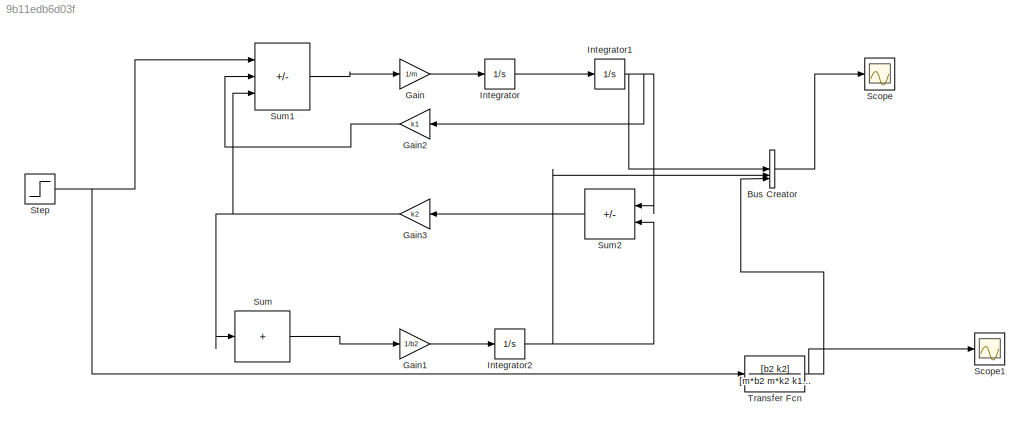
MODEL slx_9b11edb6d03f
KIND model
CONFIG AbsTol = auto
CONFIG EnableMultiTasking = off
CONFIG FixedStep = auto
CONFIG MaxStep = auto
CONFIG MinStep = auto
CONFIG RelTol = 1e-3
CONFIG SampleTimeConstraint = Unconstrained
CONFIG SolverName = VariableStepAuto
CONFIG StartTime = 0.0
CONFIG StopTime = 10.0
BLOCK [BusCreator] Bus Creator
  DisplayOption = bar
  InheritFromInputs = on
  Inputs = 3
BLOCK [Gain] Gain
  Gain = 1/m
BLOCK [Gain] Gain1
  Gain = 1/b2
BLOCK [Gain] Gain2
  Gain = k1
BLOCK [Gain] Gain3
  Gain = k2
BLOCK [Integrator] Integrator
BLOCK [Integrator] Integrator1
BLOCK [Integrator] Integrator2
BLOCK [Scope] Scope
  Floating = off
  NumInputPorts = 1
  ScopeSpecificationString = Simulink.scopes.TimeScopeBlockCfg('CurrentConfiguration', extmgr.ConfigurationSet(extmgr.Configuration('Core','General UI',true),extmgr.Configuration('Core','Source UI',true),extmgr.Configuration('Sources','WiredSimulink',true),extmgr.Configuration('Visuals','Time Domain',true,'SerializedDisplays',{struct('MinYLimReal','-0.03161','MaxYLimReal','0.28452','YLabelReal','','MinYLimMag','0.00000','MaxY...<+1386ch>
BLOCK [Scope] Scope1
  Floating = off
  NumInputPorts = 1
  ScopeSpecificationString = Simulink.scopes.TimeScopeBlockCfg('CurrentConfiguration', extmgr.ConfigurationSet(extmgr.Configuration('Core','General UI',true),extmgr.Configuration('Core','Source UI',true),extmgr.Configuration('Sources','WiredSimulink',true,'DataLoggingVariableName','ScopeData1'),extmgr.Configuration('Visuals','Time Domain',true,'SerializedDisplays',{struct('MinYLimReal','-0.02083','MaxYLimReal','0.1875','YLabe...<+1367ch>
BLOCK [Step] Step
  SampleTime = 0
BLOCK [Sum] Sum
  IconShape = rectangular
  Inputs = |+
BLOCK [Sum] Sum1
  IconShape = rectangular
  Inputs = |+--
BLOCK [Sum] Sum2
  IconShape = rectangular
  Inputs = |+-
BLOCK [TransferFcn] Transfer Fcn
  Denominator = [m*b2 m*k2 k1+k2 k1*k2]
  Numerator = [b2 k2]
LINE Bus Creator:1 -> Scope:1
LINE Gain1:1 -> Integrator2:1
LINE Gain2:1 -> Sum1:2
NET Gain3:1 -> Sum1:3, Sum:1
LINE Gain:1 -> Integrator:1
NET Integrator1:1 -> Bus Creator:1, Gain2:1, Sum2:1
NET Integrator2:1 -> Bus Creator:2, Sum2:2
LINE Integrator:1 -> Integrator1:1
NET Step:1 -> Sum1:1, Transfer Fcn:1
LINE Sum1:1 -> Gain:1
LINE Sum2:1 -> Gain3:1
LINE Sum:1 -> Gain1:1
NET Transfer Fcn:1 -> Bus Creator:3, Scope1:1
note: NET lines group one-source signal fan-out (src -> all destinations, sorted); 1:1 wires keep LINE
